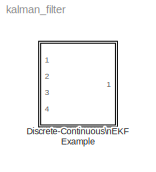
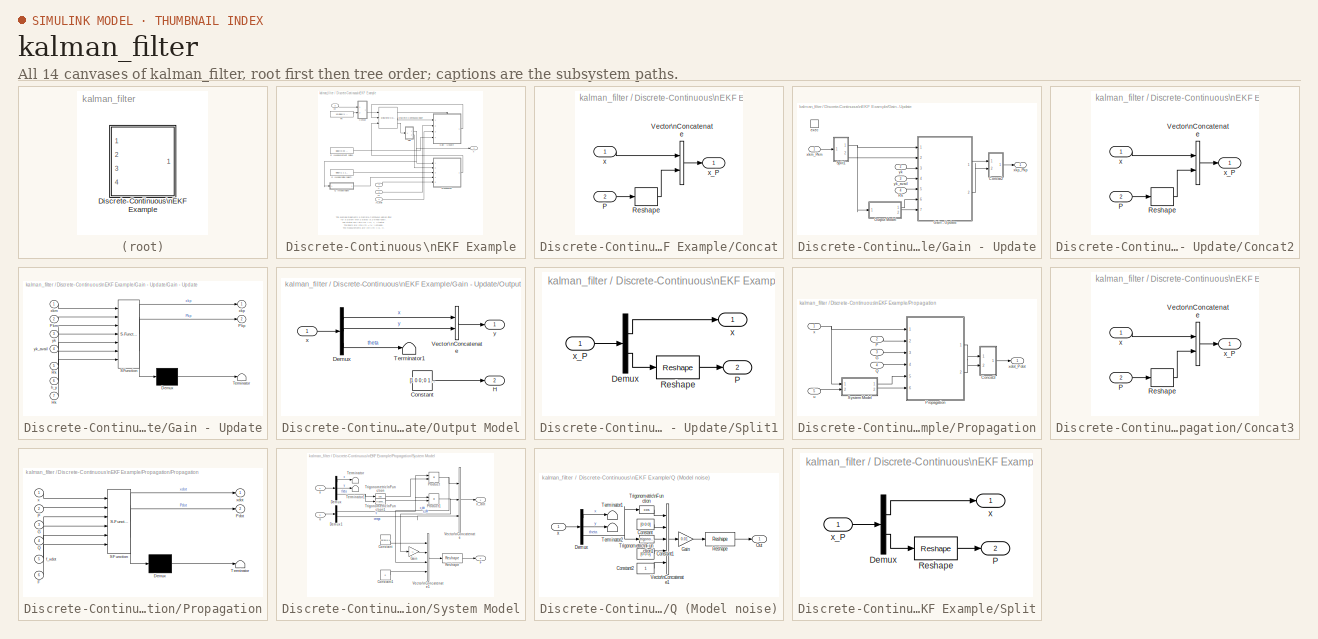
[diagram: thumbnail index - all 14 canvases of the model, root first then tree order]
MODEL kalman_filter
KIND model
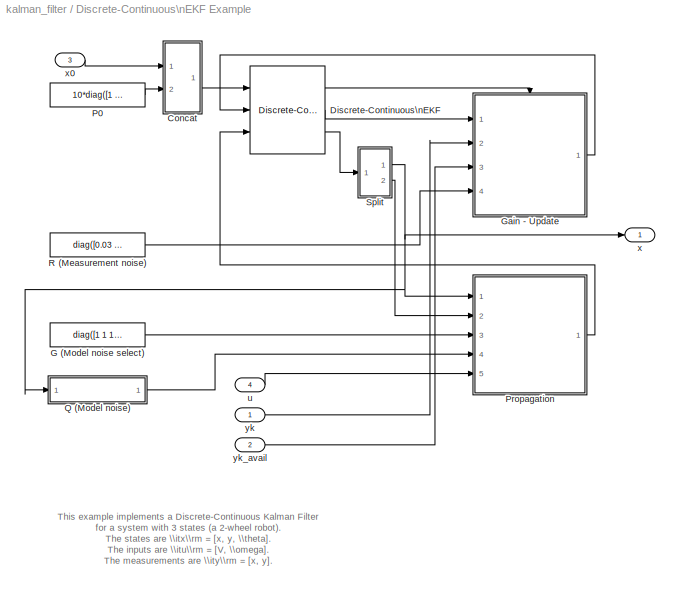
BLOCK [SubSystem] Discrete-Continuous\nEKF Example
  FunctionWithSeparateData = off
  MaskHideContents = off
  MinAlgLoopOccurrences = off
  Opaque = off
  Ports = [4, 1]
  PropExecContextOutsideSubsystem = off
  RTWSystemCode = Auto
  RequestExecContextInheritance = off
  SID = 252
BLOCK [SubSystem] Discrete-Continuous\nEKF Example/Concat
  FunctionWithSeparateData = off
  MaskHideContents = off
  MinAlgLoopOccurrences = off
  Opaque = off
  Ports = [2, 1]
  PropExecContextOutsideSubsystem = off
  RTWSystemCode = Auto
  RequestExecContextInheritance = off
  SID = 257
BLOCK [Inport] Discrete-Continuous\nEKF Example/Concat/P
  IconDisplay = Port number
  Port = 2
  SID = 259
BLOCK [Reshape] Discrete-Continuous\nEKF Example/Concat/Reshape
  Ports = [1, 1]
  SID = 260
BLOCK [Concatenate] Discrete-Continuous\nEKF Example/Concat/Vector\nConcatenate
  Mode = Vector
  Ports = [2, 1]
  SID = 261
BLOCK [Inport] Discrete-Continuous\nEKF Example/Concat/x
  IconDisplay = Port number
  SID = 258
BLOCK [Outport] Discrete-Continuous\nEKF Example/Concat/x_P
  IconDisplay = Port number
  SID = 262
BLOCK [Reference] Discrete-Continuous\nEKF Example/Discrete-Continuous\nEKF  REF=UAVdesign_net/Utilities/Kalman Filter/Discrete-Continuous\nEKF
  Ports = [3, 3]
  SID = 263
  SourceBlock = UAVdesign_net/Utilities/Kalman Filter/Discrete-Continuous\nEKF
  SourceType = KalmanFilter
  sample_time = 1
BLOCK [Constant] Discrete-Continuous\nEKF Example/G (Model noise select)
  SID = 264
  Value = diag([1 1 1])
BLOCK [SubSystem] Discrete-Continuous\nEKF Example/Gain - Update
  FunctionWithSeparateData = off
  MaskHideContents = off
  MinAlgLoopOccurrences = off
  Opaque = off
  Ports = [4, 1, 0, 1]
  PropExecContextOutsideSubsystem = off
  RTWSystemCode = Auto
  RequestExecContextInheritance = off
  SID = 265
  TreatAsAtomicUnit = on
BLOCK [SubSystem] Discrete-Continuous\nEKF Example/Gain - Update/Concat2
  FunctionWithSeparateData = off
  MaskHideContents = off
  MinAlgLoopOccurrences = off
  Opaque = off
  Ports = [2, 1]
  PropExecContextOutsideSubsystem = off
  RTWSystemCode = Auto
  RequestExecContextInheritance = off
  SID = 271
BLOCK [Inport] Discrete-Continuous\nEKF Example/Gain - Update/Concat2/P
  IconDisplay = Port number
  Port = 2
  SID = 273
BLOCK [Reshape] Discrete-Continuous\nEKF Example/Gain - Update/Concat2/Reshape
  Ports = [1, 1]
  SID = 274
BLOCK [Concatenate] Discrete-Continuous\nEKF Example/Gain - Update/Concat2/Vector\nConcatenate
  Mode = Vector
  Ports = [2, 1]
  SID = 275
BLOCK [Inport] Discrete-Continuous\nEKF Example/Gain - Update/Concat2/x
  IconDisplay = Port number
  SID = 272
BLOCK [Outport] Discrete-Continuous\nEKF Example/Gain - Update/Concat2/x_P
  IconDisplay = Port number
  SID = 276
BLOCK [SubSystem] Discrete-Continuous\nEKF Example/Gain - Update/Gain - Update
  ErrorFcn = Stateflow.Translate.translate
  FunctionWithSeparateData = off
  MaskDescription = Embedded MATLAB block
  MaskDisplay = bgColor = Simulink.Root.ColorString2Rgb(get_param(gcbh, 'BackgroundColor')); image(imread('private/eml_membrane_16.png','png','BackgroundColor',bgColor(1:3)),'center'); disp([10 10 'EKF_d']);
  MaskHideContents = off
  MaskIconFrame = on
  MaskIconOpaque = off
  MaskIconRotate = none
  MaskIconUnits = normalized
  MaskPortRotate = default
  MaskSelfModifiable = on
  MaskType = Stateflow
  MinAlgLoopOccurrences = off
  Opaque = off
  PermitHierarchicalResolution = ExplicitOnly
  Ports = [7, 2]
  PropExecContextOutsideSubsystem = off
  RTWSystemCode = Auto
  RequestExecContextInheritance = off
  SID = 277
  TreatAsAtomicUnit = on
BLOCK [Demux] Discrete-Continuous\nEKF Example/Gain - Update/Gain - Update/ Demux 
  Outputs = 1
  Ports = [1, 1]
  SID = 277::18
BLOCK [S-Function] Discrete-Continuous\nEKF Example/Gain - Update/Gain - Update/ SFunction 
  EnableBusSupport = off
  FunctionName = sf_sfun
  PortCounts = [7 3]
  Ports = [7, 3]
  SID = 277::17
  Tag = Stateflow S-Function kalman_filter 2
BLOCK [Terminator] Discrete-Continuous\nEKF Example/Gain - Update/Gain - Update/ Terminator 
  SID = 277::20
BLOCK [Inport] Discrete-Continuous\nEKF Example/Gain - Update/Gain - Update/Hk
  IconDisplay = Port number
  Port = 7
  SID = 277::7
BLOCK [Inport] Discrete-Continuous\nEKF Example/Gain - Update/Gain - Update/Pkm
  IconDisplay = Port number
  Port = 2
  SID = 277::2
BLOCK [Outport] Discrete-Continuous\nEKF Example/Gain - Update/Gain - Update/Pkp
  IconDisplay = Port number
  Port = 2
  SID = 277::12
BLOCK [Inport] Discrete-Continuous\nEKF Example/Gain - Update/Gain - Update/Rk
  IconDisplay = Port number
  Port = 5
  SID = 277::5
BLOCK [Inport] Discrete-Continuous\nEKF Example/Gain - Update/Gain - Update/h_y
  IconDisplay = Port number
  Port = 6
  SID = 277::6
BLOCK [Inport] Discrete-Continuous\nEKF Example/Gain - Update/Gain - Update/xkm
  IconDisplay = Port number
  SID = 277::1
BLOCK [Outport] Discrete-Continuous\nEKF Example/Gain - Update/Gain - Update/xkp
  IconDisplay = Port number
  SID = 277::11
BLOCK [Inport] Discrete-Continuous\nEKF Example/Gain - Update/Gain - Update/yk
  IconDisplay = Port number
  Port = 3
  SID = 277::3
BLOCK [Inport] Discrete-Continuous\nEKF Example/Gain - Update/Gain - Update/yk_avail
  IconDisplay = Port number
  Port = 4
  SID = 277::4
BLOCK [SubSystem] Discrete-Continuous\nEKF Example/Gain - Update/Output Model
  FunctionWithSeparateData = off
  MaskHideContents = off
  MinAlgLoopOccurrences = off
  Opaque = off
  Ports = [1, 2]
  PropExecContextOutsideSubsystem = off
  RTWSystemCode = Auto
  RequestExecContextInheritance = off
  SID = 278
BLOCK [Constant] Discrete-Continuous\nEKF Example/Gain - Update/Output Model/Constant
  SID = 280
  Value = [1 0 0; 0 1 0]
BLOCK [Demux] Discrete-Continuous\nEKF Example/Gain - Update/Output Model/Demux
  DisplayOption = bar
  Outputs = 3
  Ports = [1, 3]
  SID = 281
BLOCK [Outport] Discrete-Continuous\nEKF Example/Gain - Update/Output Model/H
  IconDisplay = Port number
  Port = 2
  SID = 285
BLOCK [Terminator] Discrete-Continuous\nEKF Example/Gain - Update/Output Model/Terminator1
  SID = 282
BLOCK [Concatenate] Discrete-Continuous\nEKF Example/Gain - Update/Output Model/Vector\nConcatenate
  Mode = Vector
  Ports = [2, 1]
  SID = 283
BLOCK [Inport] Discrete-Continuous\nEKF Example/Gain - Update/Output Model/x
  IconDisplay = Port number
  SID = 279
BLOCK [Outport] Discrete-Continuous\nEKF Example/Gain - Update/Output Model/y
  IconDisplay = Port number
  SID = 284
BLOCK [Inport] Discrete-Continuous\nEKF Example/Gain - Update/Rk
  IconDisplay = Port number
  Port = 4
  SID = 269
BLOCK [SubSystem] Discrete-Continuous\nEKF Example/Gain - Update/Split1
  FunctionWithSeparateData = off
  MaskHideContents = off
  MinAlgLoopOccurrences = off
  Opaque = off
  Ports = [1, 2]
  PropExecContextOutsideSubsystem = off
  RTWSystemCode = Auto
  RequestExecContextInheritance = off
  SID = 286
BLOCK [Demux] Discrete-Continuous\nEKF Example/Gain - Update/Split1/Demux
  DisplayOption = bar
  Outputs = [3 9]
  Ports = [1, 2]
  SID = 288
BLOCK [Outport] Discrete-Continuous\nEKF Example/Gain - Update/Split1/P
  IconDisplay = Port number
  Port = 2
  SID = 291
BLOCK [Reshape] Discrete-Continuous\nEKF Example/Gain - Update/Split1/Reshape
  OutputDimensionality = Customize
  OutputDimensions = [3,3]
  Ports = [1, 1]
  SID = 289
BLOCK [Outport] Discrete-Continuous\nEKF Example/Gain - Update/Split1/x
  IconDisplay = Port number
  SID = 290
BLOCK [Inport] Discrete-Continuous\nEKF Example/Gain - Update/Split1/x_P
  IconDisplay = Port number
  SID = 287
BLOCK [TriggerPort] Discrete-Continuous\nEKF Example/Gain - Update/exec
  Ports = []
  SID = 270
  StatesWhenEnabling = held
  TriggerType = function-call
BLOCK [Inport] Discrete-Continuous\nEKF Example/Gain - Update/xkm_Pkm
  IconDisplay = Port number
  SID = 266
BLOCK [Outport] Discrete-Continuous\nEKF Example/Gain - Update/xkp_Pkp
  IconDisplay = Port number
  SID = 292
BLOCK [Inport] Discrete-Continuous\nEKF Example/Gain - Update/yk
  IconDisplay = Port number
  Port = 2
  SID = 267
BLOCK [Inport] Discrete-Continuous\nEKF Example/Gain - Update/yk_avail
  IconDisplay = Port number
  Port = 3
  SID = 268
BLOCK [Constant] Discrete-Continuous\nEKF Example/P0
  SID = 293
  Value = 10*diag([1 1 1])
BLOCK [SubSystem] Discrete-Continuous\nEKF Example/Propagation
  FunctionWithSeparateData = off
  MaskHideContents = off
  MinAlgLoopOccurrences = off
  Opaque = off
  Ports = [5, 1]
  PropExecContextOutsideSubsystem = off
  RTWSystemCode = Auto
  RequestExecContextInheritance = off
  SID = 294
BLOCK [SubSystem] Discrete-Continuous\nEKF Example/Propagation/Concat3
  FunctionWithSeparateData = off
  MaskHideContents = off
  MinAlgLoopOccurrences = off
  Opaque = off
  Ports = [2, 1]
  PropExecContextOutsideSubsystem = off
  RTWSystemCode = Auto
  RequestExecContextInheritance = off
  SID = 300
BLOCK [Inport] Discrete-Continuous\nEKF Example/Propagation/Concat3/P
  IconDisplay = Port number
  Port = 2
  SID = 302
BLOCK [Reshape] Discrete-Continuous\nEKF Example/Propagation/Concat3/Reshape
  Ports = [1, 1]
  SID = 303
BLOCK [Concatenate] Discrete-Continuous\nEKF Example/Propagation/Concat3/Vector\nConcatenate
  Mode = Vector
  Ports = [2, 1]
  SID = 304
BLOCK [Inport] Discrete-Continuous\nEKF Example/Propagation/Concat3/x
  IconDisplay = Port number
  SID = 301
BLOCK [Outport] Discrete-Continuous\nEKF Example/Propagation/Concat3/x_P
  IconDisplay = Port number
  SID = 305
BLOCK [Inport] Discrete-Continuous\nEKF Example/Propagation/G
  IconDisplay = Port number
  Port = 3
  SID = 297
BLOCK [Inport] Discrete-Continuous\nEKF Example/Propagation/P
  IconDisplay = Port number
  Port = 2
  SID = 296
BLOCK [SubSystem] Discrete-Continuous\nEKF Example/Propagation/Propagation
  ErrorFcn = Stateflow.Translate.translate
  FunctionWithSeparateData = off
  MaskDescription = Embedded MATLAB block
  MaskDisplay = bgColor = Simulink.Root.ColorString2Rgb(get_param(gcbh, 'BackgroundColor')); image(imread('private/eml_membrane_16.png','png','BackgroundColor',bgColor(1:3)),'center'); disp([10 10 'EKF_c']);
  MaskHideContents = off
  MaskIconFrame = on
  MaskIconOpaque = off
  MaskIconRotate = none
  MaskIconUnits = normalized
  MaskPortRotate = default
  MaskSelfModifiable = on
  MaskType = Stateflow
  MinAlgLoopOccurrences = off
  Opaque = off
  PermitHierarchicalResolution = ExplicitOnly
  Ports = [6, 2]
  PropExecContextOutsideSubsystem = off
  RTWSystemCode = Auto
  RequestExecContextInheritance = off
  SID = 306
  TreatAsAtomicUnit = on
BLOCK [Demux] Discrete-Continuous\nEKF Example/Propagation/Propagation/ Demux 
  Outputs = 1
  Ports = [1, 1]
  SID = 306::17
BLOCK [S-Function] Discrete-Continuous\nEKF Example/Propagation/Propagation/ SFunction 
  EnableBusSupport = off
  FunctionName = sf_sfun
  PortCounts = [6 3]
  Ports = [6, 3]
  SID = 306::16
  Tag = Stateflow S-Function kalman_filter 4
BLOCK [Terminator] Discrete-Continuous\nEKF Example/Propagation/Propagation/ Terminator 
  SID = 306::19
BLOCK [Inport] Discrete-Continuous\nEKF Example/Propagation/Propagation/F
  IconDisplay = Port number
  Port = 6
  SID = 306::6
BLOCK [Inport] Discrete-Continuous\nEKF Example/Propagation/Propagation/G
  IconDisplay = Port number
  Port = 3
  SID = 306::3
BLOCK [Inport] Discrete-Continuous\nEKF Example/Propagation/Propagation/P
  IconDisplay = Port number
  Port = 2
  SID = 306::2
BLOCK [Outport] Discrete-Continuous\nEKF Example/Propagation/Propagation/Pdot
  IconDisplay = Port number
  Port = 2
  SID = 306::11
BLOCK [Inport] Discrete-Continuous\nEKF Example/Propagation/Propagation/Q
  IconDisplay = Port number
  Port = 4
  SID = 306::4
BLOCK [Inport] Discrete-Continuous\nEKF Example/Propagation/Propagation/f_xdot
  IconDisplay = Port number
  Port = 5
  SID = 306::5
BLOCK [Inport] Discrete-Continuous\nEKF Example/Propagation/Propagation/x
  IconDisplay = Port number
  SID = 306::1
BLOCK [Outport] Discrete-Continuous\nEKF Example/Propagation/Propagation/xdot
  IconDisplay = Port number
  SID = 306::10
BLOCK [Inport] Discrete-Continuous\nEKF Example/Propagation/Q
  IconDisplay = Port number
  Port = 4
  SID = 298
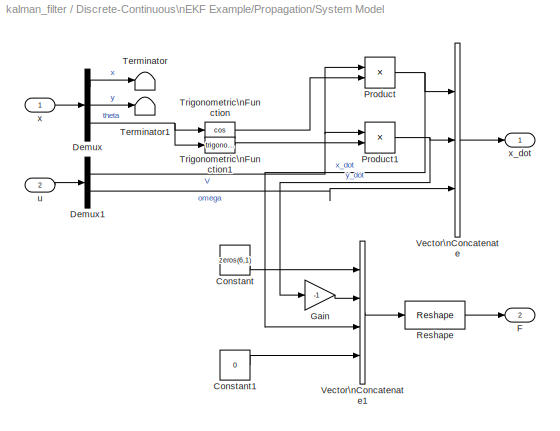
BLOCK [SubSystem] Discrete-Continuous\nEKF Example/Propagation/System Model
  FunctionWithSeparateData = off
  MaskHideContents = off
  MinAlgLoopOccurrences = off
  Opaque = off
  Ports = [2, 2]
  PropExecContextOutsideSubsystem = off
  RTWSystemCode = Auto
  RequestExecContextInheritance = off
  SID = 307
BLOCK [Constant] Discrete-Continuous\nEKF Example/Propagation/System Model/Constant
  SID = 310
  Value = zeros(6,1)
BLOCK [Constant] Discrete-Continuous\nEKF Example/Propagation/System Model/Constant1
  SID = 311
  Value = 0
BLOCK [Demux] Discrete-Continuous\nEKF Example/Propagation/System Model/Demux
  DisplayOption = bar
  Outputs = 3
  Ports = [1, 3]
  SID = 312
BLOCK [Demux] Discrete-Continuous\nEKF Example/Propagation/System Model/Demux1
  DisplayOption = bar
  Outputs = 2
  Ports = [1, 2]
  SID = 313
BLOCK [Outport] Discrete-Continuous\nEKF Example/Propagation/System Model/F
  IconDisplay = Port number
  Port = 2
  SID = 325
BLOCK [Gain] Discrete-Continuous\nEKF Example/Propagation/System Model/Gain
  Gain = -1
  OutDataTypeStr = Inherit: Inherit via internal rule
  ParamDataTypeStr = Inherit: Inherit via internal rule
  SID = 314
  SaturateOnIntegerOverflow = off
BLOCK [Product] Discrete-Continuous\nEKF Example/Propagation/System Model/Product
  InputSameDT = off
  OutDataTypeStr = Inherit: Inherit via internal rule
  Ports = [2, 1]
  SID = 315
  SaturateOnIntegerOverflow = off
BLOCK [Product] Discrete-Continuous\nEKF Example/Propagation/System Model/Product1
  InputSameDT = off
  OutDataTypeStr = Inherit: Inherit via internal rule
  Ports = [2, 1]
  SID = 316
  SaturateOnIntegerOverflow = off
BLOCK [Reshape] Discrete-Continuous\nEKF Example/Propagation/System Model/Reshape
  OutputDimensionality = Customize
  OutputDimensions = [3,3]
  Ports = [1, 1]
  SID = 317
BLOCK [Terminator] Discrete-Continuous\nEKF Example/Propagation/System Model/Terminator
  SID = 318
BLOCK [Terminator] Discrete-Continuous\nEKF Example/Propagation/System Model/Terminator1
  SID = 319
BLOCK [Trigonometry] Discrete-Continuous\nEKF Example/Propagation/System Model/Trigonometric\nFunction
  Operator = cos
  Ports = [1, 1]
  SID = 320
BLOCK [Trigonometry] Discrete-Continuous\nEKF Example/Propagation/System Model/Trigonometric\nFunction1
  Ports = [1, 1]
  SID = 321
BLOCK [Concatenate] Discrete-Continuous\nEKF Example/Propagation/System Model/Vector\nConcatenate
  Mode = Vector
  NumInputs = 3
  Ports = [3, 1]
  SID = 322
BLOCK [Concatenate] Discrete-Continuous\nEKF Example/Propagation/System Model/Vector\nConcatenate1
  Mode = Vector
  NumInputs = 4
  Ports = [4, 1]
  SID = 323
BLOCK [Inport] Discrete-Continuous\nEKF Example/Propagation/System Model/u
  IconDisplay = Port number
  Port = 2
  SID = 309
BLOCK [Inport] Discrete-Continuous\nEKF Example/Propagation/System Model/x
  IconDisplay = Port number
  SID = 308
BLOCK [Outport] Discrete-Continuous\nEKF Example/Propagation/System Model/x_dot
  IconDisplay = Port number
  SID = 324
BLOCK [Inport] Discrete-Continuous\nEKF Example/Propagation/u
  IconDisplay = Port number
  Port = 5
  SID = 299
BLOCK [Inport] Discrete-Continuous\nEKF Example/Propagation/x
  IconDisplay = Port number
  SID = 295
BLOCK [Outport] Discrete-Continuous\nEKF Example/Propagation/xdot_Pdot
  IconDisplay = Port number
  SID = 326
BLOCK [SubSystem] Discrete-Continuous\nEKF Example/Q (Model noise)
  FunctionWithSeparateData = off
  MaskHideContents = off
  MinAlgLoopOccurrences = off
  Opaque = off
  Ports = [1, 1]
  PropExecContextOutsideSubsystem = off
  RTWSystemCode = Auto
  RequestExecContextInheritance = off
  SID = 327
BLOCK [Constant] Discrete-Continuous\nEKF Example/Q (Model noise)/Constant
  SID = 329
  Value = [0 0 0]
BLOCK [Constant] Discrete-Continuous\nEKF Example/Q (Model noise)/Constant1
  SID = 330
  Value = [0 0 0]
BLOCK [Constant] Discrete-Continuous\nEKF Example/Q (Model noise)/Constant2
  SID = 331
BLOCK [Demux] Discrete-Continuous\nEKF Example/Q (Model noise)/Demux
  DisplayOption = bar
  Outputs = 3
  Ports = [1, 3]
  SID = 332
BLOCK [Gain] Discrete-Continuous\nEKF Example/Q (Model noise)/Gain
  Gain = 0.01
  OutDataTypeStr = Inherit: Inherit via internal rule
  ParamDataTypeStr = Inherit: Inherit via internal rule
  SID = 333
  SaturateOnIntegerOverflow = off
BLOCK [Outport] Discrete-Continuous\nEKF Example/Q (Model noise)/Out
  IconDisplay = Port number
  SID = 340
BLOCK [Reshape] Discrete-Continuous\nEKF Example/Q (Model noise)/Reshape
  OutputDimensionality = Customize
  OutputDimensions = [3,3]
  Ports = [1, 1]
  SID = 334
BLOCK [Terminator] Discrete-Continuous\nEKF Example/Q (Model noise)/Terminator1
  SID = 335
BLOCK [Terminator] Discrete-Continuous\nEKF Example/Q (Model noise)/Terminator2
  SID = 336
BLOCK [Trigonometry] Discrete-Continuous\nEKF Example/Q (Model noise)/Trigonometric\nFunction
  Operator = cos
  Ports = [1, 1]
  SID = 337
BLOCK [Trigonometry] Discrete-Continuous\nEKF Example/Q (Model noise)/Trigonometric\nFunction1
  Ports = [1, 1]
  SID = 338
BLOCK [Concatenate] Discrete-Continuous\nEKF Example/Q (Model noise)/Vector\nConcatenate1
  Mode = Vector
  NumInputs = 5
  Ports = [5, 1]
  SID = 339
BLOCK [Inport] Discrete-Continuous\nEKF Example/Q (Model noise)/x
  IconDisplay = Port number
  SID = 328
BLOCK [Constant] Discrete-Continuous\nEKF Example/R (Measurement noise)
  SID = 341
  Value = diag([0.03 0.03])
BLOCK [SubSystem] Discrete-Continuous\nEKF Example/Split
  FunctionWithSeparateData = off
  MaskHideContents = off
  MinAlgLoopOccurrences = off
  Opaque = off
  Ports = [1, 2]
  PropExecContextOutsideSubsystem = off
  RTWSystemCode = Auto
  RequestExecContextInheritance = off
  SID = 342
BLOCK [Demux] Discrete-Continuous\nEKF Example/Split/Demux
  DisplayOption = bar
  Outputs = [3 9]
  Ports = [1, 2]
  SID = 344
BLOCK [Outport] Discrete-Continuous\nEKF Example/Split/P
  IconDisplay = Port number
  Port = 2
  SID = 347
BLOCK [Reshape] Discrete-Continuous\nEKF Example/Split/Reshape
  OutputDimensionality = Customize
  OutputDimensions = [3,3]
  Ports = [1, 1]
  SID = 345
BLOCK [Outport] Discrete-Continuous\nEKF Example/Split/x
  IconDisplay = Port number
  SID = 346
BLOCK [Inport] Discrete-Continuous\nEKF Example/Split/x_P
  IconDisplay = Port number
  SID = 343
BLOCK [Inport] Discrete-Continuous\nEKF Example/u
  IconDisplay = Port number
  Port = 4
  SID = 256
BLOCK [Outport] Discrete-Continuous\nEKF Example/x
  IconDisplay = Port number
  SID = 348
BLOCK [Inport] Discrete-Continuous\nEKF Example/x0
  IconDisplay = Port number
  Port = 3
  SID = 255
BLOCK [Inport] Discrete-Continuous\nEKF Example/yk
  IconDisplay = Port number
  SID = 253
BLOCK [Inport] Discrete-Continuous\nEKF Example/yk_avail
  IconDisplay = Port number
  Port = 2
  SID = 254
ANNOTATION Discrete-Continuous\nEKF Example: This example implements a Discrete-Continuous Kalman Filter\nfor a system with 3 states (a 2-wheel robot).\nThe states are \\itx\\rm = [x, y, \\theta].\nThe inputs are \\itu\\rm = [V, \\omega].\nThe measurements are \\ity\\rm = [x, y].
LINE Discrete-Continuous\nEKF Example/Concat/P:1 -> Discrete-Continuous\nEKF Example/Concat/Reshape:1
LINE Discrete-Continuous\nEKF Example/Concat/Reshape:1 -> Discrete-Continuous\nEKF Example/Concat/Vector\nConcatenate:2
LINE Discrete-Continuous\nEKF Example/Concat/Vector\nConcatenate:1 -> Discrete-Continuous\nEKF Example/Concat/x_P:1
LINE Discrete-Continuous\nEKF Example/Concat/x:1 -> Discrete-Continuous\nEKF Example/Concat/Vector\nConcatenate:1
LINE Discrete-Continuous\nEKF Example/Concat:1 -> Discrete-Continuous\nEKF Example/Discrete-Continuous\nEKF:1
LINE Discrete-Continuous\nEKF Example/Discrete-Continuous\nEKF:1 -> Discrete-Continuous\nEKF Example/Gain - Update:trigger
LINE Discrete-Continuous\nEKF Example/Discrete-Continuous\nEKF:2 -> Discrete-Continuous\nEKF Example/Gain - Update:1
LINE Discrete-Continuous\nEKF Example/Discrete-Continuous\nEKF:3 -> Discrete-Continuous\nEKF Example/Split:1
LINE Discrete-Continuous\nEKF Example/G (Model noise select):1 -> Discrete-Continuous\nEKF Example/Propagation:3
LINE Discrete-Continuous\nEKF Example/Gain - Update/Concat2/P:1 -> Discrete-Continuous\nEKF Example/Gain - Update/Concat2/Reshape:1
LINE Discrete-Continuous\nEKF Example/Gain - Update/Concat2/Reshape:1 -> Discrete-Continuous\nEKF Example/Gain - Update/Concat2/Vector\nConcatenate:2
LINE Discrete-Continuous\nEKF Example/Gain - Update/Concat2/Vector\nConcatenate:1 -> Discrete-Continuous\nEKF Example/Gain - Update/Concat2/x_P:1
LINE Discrete-Continuous\nEKF Example/Gain - Update/Concat2/x:1 -> Discrete-Continuous\nEKF Example/Gain - Update/Concat2/Vector\nConcatenate:1
LINE Discrete-Continuous\nEKF Example/Gain - Update/Concat2:1 -> Discrete-Continuous\nEKF Example/Gain - Update/xkp_Pkp:1
LINE Discrete-Continuous\nEKF Example/Gain - Update/Gain - Update/ Demux :1 -> Discrete-Continuous\nEKF Example/Gain - Update/Gain - Update/ Terminator :1
LINE Discrete-Continuous\nEKF Example/Gain - Update/Gain - Update/ SFunction :1 -> Discrete-Continuous\nEKF Example/Gain - Update/Gain - Update/ Demux :1
LINE Discrete-Continuous\nEKF Example/Gain - Update/Gain - Update/ SFunction :2 -> Discrete-Continuous\nEKF Example/Gain - Update/Gain - Update/xkp:1
LINE Discrete-Continuous\nEKF Example/Gain - Update/Gain - Update/ SFunction :3 -> Discrete-Continuous\nEKF Example/Gain - Update/Gain - Update/Pkp:1
LINE Discrete-Continuous\nEKF Example/Gain - Update/Gain - Update/Hk:1 -> Discrete-Continuous\nEKF Example/Gain - Update/Gain - Update/ SFunction :7
LINE Discrete-Continuous\nEKF Example/Gain - Update/Gain - Update/Pkm:1 -> Discrete-Continuous\nEKF Example/Gain - Update/Gain - Update/ SFunction :2
LINE Discrete-Continuous\nEKF Example/Gain - Update/Gain - Update/Rk:1 -> Discrete-Continuous\nEKF Example/Gain - Update/Gain - Update/ SFunction :5
LINE Discrete-Continuous\nEKF Example/Gain - Update/Gain - Update/h_y:1 -> Discrete-Continuous\nEKF Example/Gain - Update/Gain - Update/ SFunction :6
LINE Discrete-Continuous\nEKF Example/Gain - Update/Gain - Update/xkm:1 -> Discrete-Continuous\nEKF Example/Gain - Update/Gain - Update/ SFunction :1
LINE Discrete-Continuous\nEKF Example/Gain - Update/Gain - Update/yk:1 -> Discrete-Continuous\nEKF Example/Gain - Update/Gain - Update/ SFunction :3
LINE Discrete-Continuous\nEKF Example/Gain - Update/Gain - Update/yk_avail:1 -> Discrete-Continuous\nEKF Example/Gain - Update/Gain - Update/ SFunction :4
LINE Discrete-Continuous\nEKF Example/Gain - Update/Gain - Update:1 -> Discrete-Continuous\nEKF Example/Gain - Update/Concat2:1
LINE Discrete-Continuous\nEKF Example/Gain - Update/Gain - Update:2 -> Discrete-Continuous\nEKF Example/Gain - Update/Concat2:2
LINE Discrete-Continuous\nEKF Example/Gain - Update/Output Model/Constant:1 -> Discrete-Continuous\nEKF Example/Gain - Update/Output Model/H:1
LINE Discrete-Continuous\nEKF Example/Gain - Update/Output Model/Demux:1 -> Discrete-Continuous\nEKF Example/Gain - Update/Output Model/Vector\nConcatenate:1
LINE Discrete-Continuous\nEKF Example/Gain - Update/Output Model/Demux:2 -> Discrete-Continuous\nEKF Example/Gain - Update/Output Model/Vector\nConcatenate:2
LINE Discrete-Continuous\nEKF Example/Gain - Update/Output Model/Demux:3 -> Discrete-Continuous\nEKF Example/Gain - Update/Output Model/Terminator1:1
LINE Discrete-Continuous\nEKF Example/Gain - Update/Output Model/Vector\nConcatenate:1 -> Discrete-Continuous\nEKF Example/Gain - Update/Output Model/y:1
LINE Discrete-Continuous\nEKF Example/Gain - Update/Output Model/x:1 -> Discrete-Continuous\nEKF Example/Gain - Update/Output Model/Demux:1
LINE Discrete-Continuous\nEKF Example/Gain - Update/Output Model:1 -> Discrete-Continuous\nEKF Example/Gain - Update/Gain - Update:6
LINE Discrete-Continuous\nEKF Example/Gain - Update/Output Model:2 -> Discrete-Continuous\nEKF Example/Gain - Update/Gain - Update:7
LINE Discrete-Continuous\nEKF Example/Gain - Update/Rk:1 -> Discrete-Continuous\nEKF Example/Gain - Update/Gain - Update:5
LINE Discrete-Continuous\nEKF Example/Gain - Update/Split1/Demux:1 -> Discrete-Continuous\nEKF Example/Gain - Update/Split1/x:1
LINE Discrete-Continuous\nEKF Example/Gain - Update/Split1/Demux:2 -> Discrete-Continuous\nEKF Example/Gain - Update/Split1/Reshape:1
LINE Discrete-Continuous\nEKF Example/Gain - Update/Split1/Reshape:1 -> Discrete-Continuous\nEKF Example/Gain - Update/Split1/P:1
LINE Discrete-Continuous\nEKF Example/Gain - Update/Split1/x_P:1 -> Discrete-Continuous\nEKF Example/Gain - Update/Split1/Demux:1
NET Discrete-Continuous\nEKF Example/Gain - Update/Split1:1 -> Discrete-Continuous\nEKF Example/Gain - Update/Gain - Update:1, Discrete-Continuous\nEKF Example/Gain - Update/Output Model:1
LINE Discrete-Continuous\nEKF Example/Gain - Update/Split1:2 -> Discrete-Continuous\nEKF Example/Gain - Update/Gain - Update:2
LINE Discrete-Continuous\nEKF Example/Gain - Update/xkm_Pkm:1 -> Discrete-Continuous\nEKF Example/Gain - Update/Split1:1
LINE Discrete-Continuous\nEKF Example/Gain - Update/yk:1 -> Discrete-Continuous\nEKF Example/Gain - Update/Gain - Update:3
LINE Discrete-Continuous\nEKF Example/Gain - Update/yk_avail:1 -> Discrete-Continuous\nEKF Example/Gain - Update/Gain - Update:4
LINE Discrete-Continuous\nEKF Example/Gain - Update:1 -> Discrete-Continuous\nEKF Example/Discrete-Continuous\nEKF:2
LINE Discrete-Continuous\nEKF Example/P0:1 -> Discrete-Continuous\nEKF Example/Concat:2
LINE Discrete-Continuous\nEKF Example/Propagation/Concat3/P:1 -> Discrete-Continuous\nEKF Example/Propagation/Concat3/Reshape:1
LINE Discrete-Continuous\nEKF Example/Propagation/Concat3/Reshape:1 -> Discrete-Continuous\nEKF Example/Propagation/Concat3/Vector\nConcatenate:2
LINE Discrete-Continuous\nEKF Example/Propagation/Concat3/Vector\nConcatenate:1 -> Discrete-Continuous\nEKF Example/Propagation/Concat3/x_P:1
LINE Discrete-Continuous\nEKF Example/Propagation/Concat3/x:1 -> Discrete-Continuous\nEKF Example/Propagation/Concat3/Vector\nConcatenate:1
LINE Discrete-Continuous\nEKF Example/Propagation/Concat3:1 -> Discrete-Continuous\nEKF Example/Propagation/xdot_Pdot:1
LINE Discrete-Continuous\nEKF Example/Propagation/G:1 -> Discrete-Continuous\nEKF Example/Propagation/Propagation:3
LINE Discrete-Continuous\nEKF Example/Propagation/P:1 -> Discrete-Continuous\nEKF Example/Propagation/Propagation:2
LINE Discrete-Continuous\nEKF Example/Propagation/Propagation/ Demux :1 -> Discrete-Continuous\nEKF Example/Propagation/Propagation/ Terminator :1
LINE Discrete-Continuous\nEKF Example/Propagation/Propagation/ SFunction :1 -> Discrete-Continuous\nEKF Example/Propagation/Propagation/ Demux :1
LINE Discrete-Continuous\nEKF Example/Propagation/Propagation/ SFunction :2 -> Discrete-Continuous\nEKF Example/Propagation/Propagation/xdot:1
LINE Discrete-Continuous\nEKF Example/Propagation/Propagation/ SFunction :3 -> Discrete-Continuous\nEKF Example/Propagation/Propagation/Pdot:1
LINE Discrete-Continuous\nEKF Example/Propagation/Propagation/F:1 -> Discrete-Continuous\nEKF Example/Propagation/Propagation/ SFunction :6
LINE Discrete-Continuous\nEKF Example/Propagation/Propagation/G:1 -> Discrete-Continuous\nEKF Example/Propagation/Propagation/ SFunction :3
LINE Discrete-Continuous\nEKF Example/Propagation/Propagation/P:1 -> Discrete-Continuous\nEKF Example/Propagation/Propagation/ SFunction :2
LINE Discrete-Continuous\nEKF Example/Propagation/Propagation/Q:1 -> Discrete-Continuous\nEKF Example/Propagation/Propagation/ SFunction :4
LINE Discrete-Continuous\nEKF Example/Propagation/Propagation/f_xdot:1 -> Discrete-Continuous\nEKF Example/Propagation/Propagation/ SFunction :5
LINE Discrete-Continuous\nEKF Example/Propagation/Propagation/x:1 -> Discrete-Continuous\nEKF Example/Propagation/Propagation/ SFunction :1
LINE Discrete-Continuous\nEKF Example/Propagation/Propagation:1 -> Discrete-Continuous\nEKF Example/Propagation/Concat3:1
LINE Discrete-Continuous\nEKF Example/Propagation/Propagation:2 -> Discrete-Continuous\nEKF Example/Propagation/Concat3:2
LINE Discrete-Continuous\nEKF Example/Propagation/Q:1 -> Discrete-Continuous\nEKF Example/Propagation/Propagation:4
LINE Discrete-Continuous\nEKF Example/Propagation/System Model/Constant1:1 -> Discrete-Continuous\nEKF Example/Propagation/System Model/Vector\nConcatenate1:4
LINE Discrete-Continuous\nEKF Example/Propagation/System Model/Constant:1 -> Discrete-Continuous\nEKF Example/Propagation/System Model/Vector\nConcatenate1:1
NET Discrete-Continuous\nEKF Example/Propagation/System Model/Demux1:1 -> Discrete-Continuous\nEKF Example/Propagation/System Model/Product1:1, Discrete-Continuous\nEKF Example/Propagation/System Model/Product:1
LINE Discrete-Continuous\nEKF Example/Propagation/System Model/Demux1:2 -> Discrete-Continuous\nEKF Example/Propagation/System Model/Vector\nConcatenate:3
LINE Discrete-Continuous\nEKF Example/Propagation/System Model/Demux:1 -> Discrete-Continuous\nEKF Example/Propagation/System Model/Terminator:1
LINE Discrete-Continuous\nEKF Example/Propagation/System Model/Demux:2 -> Discrete-Continuous\nEKF Example/Propagation/System Model/Terminator1:1
NET Discrete-Continuous\nEKF Example/Propagation/System Model/Demux:3 -> Discrete-Continuous\nEKF Example/Propagation/System Model/Trigonometric\nFunction1:1, Discrete-Continuous\nEKF Example/Propagation/System Model/Trigonometric\nFunction:1
LINE Discrete-Continuous\nEKF Example/Propagation/System Model/Gain:1 -> Discrete-Continuous\nEKF Example/Propagation/System Model/Vector\nConcatenate1:2
NET Discrete-Continuous\nEKF Example/Propagation/System Model/Product1:1 -> Discrete-Continuous\nEKF Example/Propagation/System Model/Gain:1, Discrete-Continuous\nEKF Example/Propagation/System Model/Vector\nConcatenate:2
NET Discrete-Continuous\nEKF Example/Propagation/System Model/Product:1 -> Discrete-Continuous\nEKF Example/Propagation/System Model/Vector\nConcatenate1:3, Discrete-Continuous\nEKF Example/Propagation/System Model/Vector\nConcatenate:1
LINE Discrete-Continuous\nEKF Example/Propagation/System Model/Reshape:1 -> Discrete-Continuous\nEKF Example/Propagation/System Model/F:1
LINE Discrete-Continuous\nEKF Example/Propagation/System Model/Trigonometric\nFunction1:1 -> Discrete-Continuous\nEKF Example/Propagation/System Model/Product1:2
LINE Discrete-Continuous\nEKF Example/Propagation/System Model/Trigonometric\nFunction:1 -> Discrete-Continuous\nEKF Example/Propagation/System Model/Product:2
LINE Discrete-Continuous\nEKF Example/Propagation/System Model/Vector\nConcatenate1:1 -> Discrete-Continuous\nEKF Example/Propagation/System Model/Reshape:1
LINE Discrete-Continuous\nEKF Example/Propagation/System Model/Vector\nConcatenate:1 -> Discrete-Continuous\nEKF Example/Propagation/System Model/x_dot:1
LINE Discrete-Continuous\nEKF Example/Propagation/System Model/u:1 -> Discrete-Continuous\nEKF Example/Propagation/System Model/Demux1:1
LINE Discrete-Continuous\nEKF Example/Propagation/System Model/x:1 -> Discrete-Continuous\nEKF Example/Propagation/System Model/Demux:1
LINE Discrete-Continuous\nEKF Example/Propagation/System Model:1 -> Discrete-Continuous\nEKF Example/Propagation/Propagation:5
LINE Discrete-Continuous\nEKF Example/Propagation/System Model:2 -> Discrete-Continuous\nEKF Example/Propagation/Propagation:6
LINE Discrete-Continuous\nEKF Example/Propagation/u:1 -> Discrete-Continuous\nEKF Example/Propagation/System Model:2
NET Discrete-Continuous\nEKF Example/Propagation/x:1 -> Discrete-Continuous\nEKF Example/Propagation/Propagation:1, Discrete-Continuous\nEKF Example/Propagation/System Model:1
LINE Discrete-Continuous\nEKF Example/Propagation:1 -> Discrete-Continuous\nEKF Example/Discrete-Continuous\nEKF:3
LINE Discrete-Continuous\nEKF Example/Q (Model noise)/Constant1:1 -> Discrete-Continuous\nEKF Example/Q (Model noise)/Vector\nConcatenate1:4
LINE Discrete-Continuous\nEKF Example/Q (Model noise)/Constant2:1 -> Discrete-Continuous\nEKF Example/Q (Model noise)/Vector\nConcatenate1:5
LINE Discrete-Continuous\nEKF Example/Q (Model noise)/Constant:1 -> Discrete-Continuous\nEKF Example/Q (Model noise)/Vector\nConcatenate1:2
LINE Discrete-Continuous\nEKF Example/Q (Model noise)/Demux:1 -> Discrete-Continuous\nEKF Example/Q (Model noise)/Terminator1:1
LINE Discrete-Continuous\nEKF Example/Q (Model noise)/Demux:2 -> Discrete-Continuous\nEKF Example/Q (Model noise)/Terminator2:1
NET Discrete-Continuous\nEKF Example/Q (Model noise)/Demux:3 -> Discrete-Continuous\nEKF Example/Q (Model noise)/Trigonometric\nFunction1:1, Discrete-Continuous\nEKF Example/Q (Model noise)/Trigonometric\nFunction:1
LINE Discrete-Continuous\nEKF Example/Q (Model noise)/Gain:1 -> Discrete-Continuous\nEKF Example/Q (Model noise)/Reshape:1
LINE Discrete-Continuous\nEKF Example/Q (Model noise)/Reshape:1 -> Discrete-Continuous\nEKF Example/Q (Model noise)/Out:1
LINE Discrete-Continuous\nEKF Example/Q (Model noise)/Trigonometric\nFunction1:1 -> Discrete-Continuous\nEKF Example/Q (Model noise)/Vector\nConcatenate1:3
LINE Discrete-Continuous\nEKF Example/Q (Model noise)/Trigonometric\nFunction:1 -> Discrete-Continuous\nEKF Example/Q (Model noise)/Vector\nConcatenate1:1
LINE Discrete-Continuous\nEKF Example/Q (Model noise)/Vector\nConcatenate1:1 -> Discrete-Continuous\nEKF Example/Q (Model noise)/Gain:1
LINE Discrete-Continuous\nEKF Example/Q (Model noise)/x:1 -> Discrete-Continuous\nEKF Example/Q (Model noise)/Demux:1
LINE Discrete-Continuous\nEKF Example/Q (Model noise):1 -> Discrete-Continuous\nEKF Example/Propagation:4
LINE Discrete-Continuous\nEKF Example/R (Measurement noise):1 -> Discrete-Continuous\nEKF Example/Gain - Update:4
LINE Discrete-Continuous\nEKF Example/Split/Demux:1 -> Discrete-Continuous\nEKF Example/Split/x:1
LINE Discrete-Continuous\nEKF Example/Split/Demux:2 -> Discrete-Continuous\nEKF Example/Split/Reshape:1
LINE Discrete-Continuous\nEKF Example/Split/Reshape:1 -> Discrete-Continuous\nEKF Example/Split/P:1
LINE Discrete-Continuous\nEKF Example/Split/x_P:1 -> Discrete-Continuous\nEKF Example/Split/Demux:1
NET Discrete-Continuous\nEKF Example/Split:1 -> Discrete-Continuous\nEKF Example/Propagation:1, Discrete-Continuous\nEKF Example/Q (Model noise):1, Discrete-Continuous\nEKF Example/x:1
LINE Discrete-Continuous\nEKF Example/Split:2 -> Discrete-Continuous\nEKF Example/Propagation:2
LINE Discrete-Continuous\nEKF Example/u:1 -> Discrete-Continuous\nEKF Example/Propagation:5
LINE Discrete-Continuous\nEKF Example/x0:1 -> Discrete-Continuous\nEKF Example/Concat:1
LINE Discrete-Continuous\nEKF Example/yk:1 -> Discrete-Continuous\nEKF Example/Gain - Update:2
LINE Discrete-Continuous\nEKF Example/yk_avail:1 -> Discrete-Continuous\nEKF Example/Gain - Update:3
note: NET lines group one-source signal fan-out (src -> all destinations, sorted); 1:1 wires keep LINE
CHART Discrete-Continuous\nEKF Example/Gain - Update/Gain - Update states=1 transitions=1
  STATE_LABEL 'eML_blk_kernel()'
CHART Discrete-Continuous\nEKF Example/Propagation/Propagation states=1 transitions=1
  STATE_LABEL 'eML_blk_kernel()'
